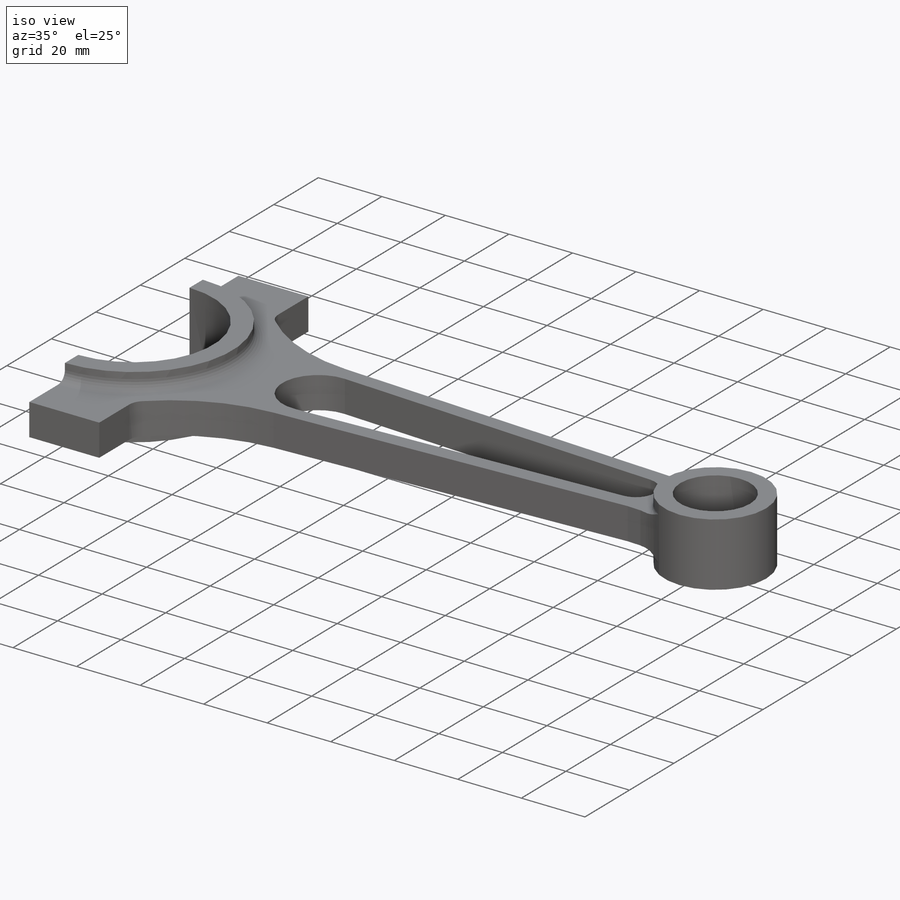
[diagram: iso view]
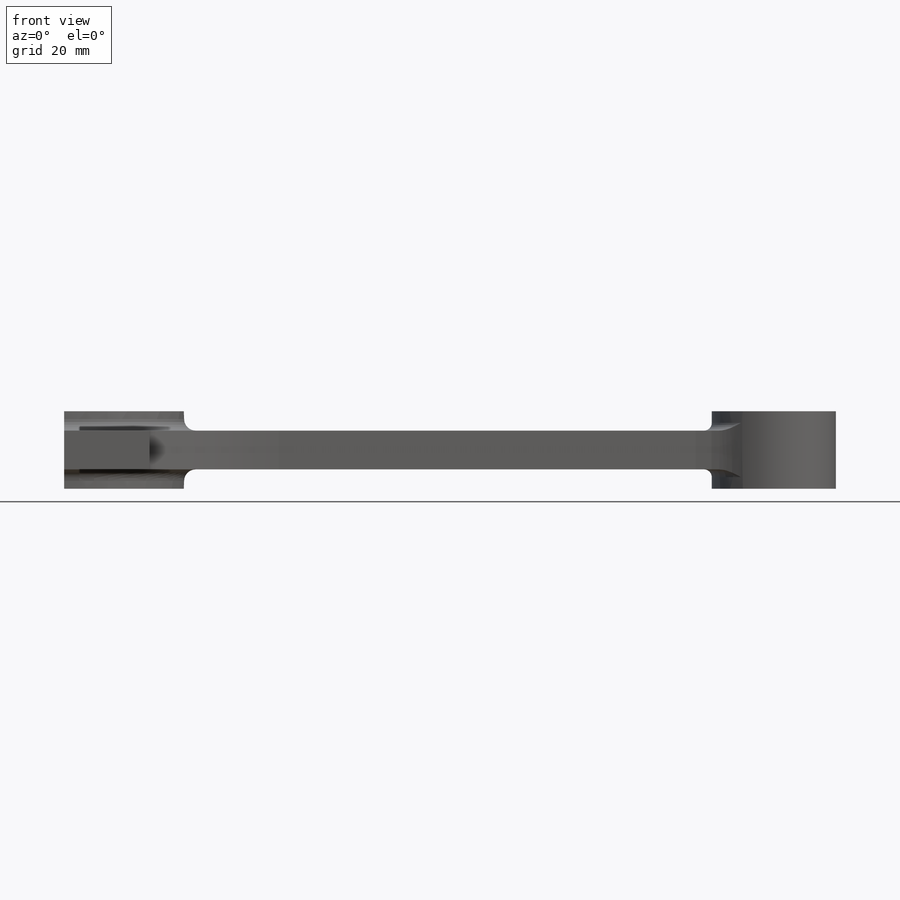
[diagram: front view]
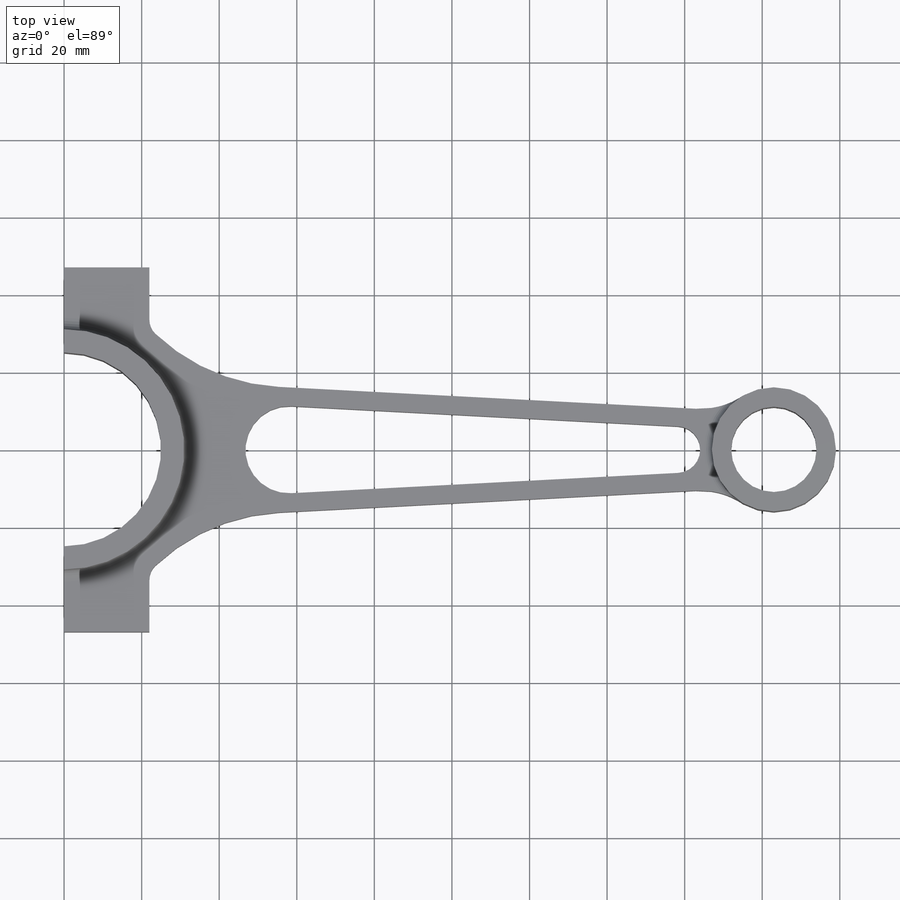
[diagram: top view]
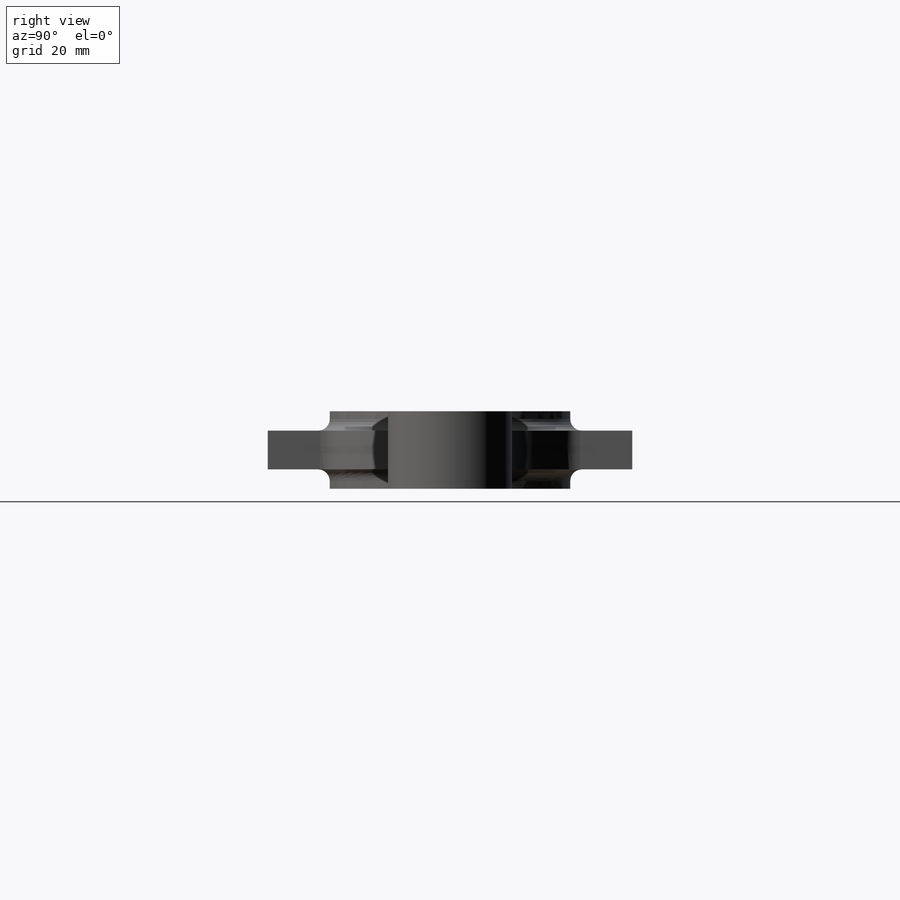
[diagram: right view]
SOLIDWORKS PART (.sldprt)
format: sldprt  version: not decoded by parser v0  size: 289,792 bytes
history: native  units: mm
features: fillet x4, sketch x3, extrude x3, mirror x2, material x1, plane x1 (+11 scaffold rows collapsed)
feature tree (25):
  scaffold x11  (default folders/planes/origin — collapsed)
  material  "Material <not specified>"
  sketch  "Sketch1"  dims[c1.D1=100.0mm c1.D2=5.0mm c1.D3=5.0mm c1.D4=20.0mm c1.D5=20.0mm c1.D6=25.0mm c1.D7=31.0mm c1.D9=50.0mm c1.D15=6.0mm c1.D16=22.0mm c1.D17=32.0mm c1.D19=~11.233596mm c1.D23=5.0mm c2.D9=50.0mm c2.D23=5.0mm c2.D3=5.0mm c2.D5=~11.233596mm c2.D14=~11.233596mm c2.D7=50.0mm c2.D1=100.0mm c2.D2=~50.211312mm c2.D8=66.12mm c2.D10=47.0mm c2.D11=22.0mm c2.D12=58.0mm c2.D13=5.0mm c3.D14=~202.239073mm c4.D14=3.0deg c4.D15=158.0mm c4.D18=183.0mm c4.D19=158.0mm c4.D20=~18.775197mm c4.D21=~18.775197mm c4.D22=~30.716315mm c4.D23=~67.001974mm c4.D24=~33.257434mm c4.D3=5.0mm c5.D23=~5.884993mm c5.D24=132.24mm c5.D18=125.0mm c5.D5=~112.446464mm c5.D13=~202.239073mm c6.D13=~2.891566deg c6.D14=100.0mm c6.D7=66.12mm c6.D2=~99.726095mm c7.D2=3.0deg c7.D1=125.0mm c8.D2=5.0mm]
  extrude  "Boss-Extrude1"  Depth=10mm
  sketch  "Sketch2"  dims[D1=~0.239705mm]
  extrude  "Boss-Extrude2"  Depth=5mm
  plane  "Plane1"
  mirror  "Mirror1"
  sketch  "Sketch3"  dims[D1=22.0mm]
  extrude  "Boss-Extrude3"  Depth=5mm
  mirror  "Mirror2"
  fillet  "Fillet1"  Radius=3mm
  fillet  "Fillet2"  Radius=3mm
  fillet  "Fillet3"  Radius=2mm
  fillet  "Fillet4"  Radius=2mm
decode coverage: 10 of 12 modeling features carry decoded parameters
note: ~ marks probable driven/reference dimensions
note: suppression state not decoded; provenance and decode notes live in map.json
